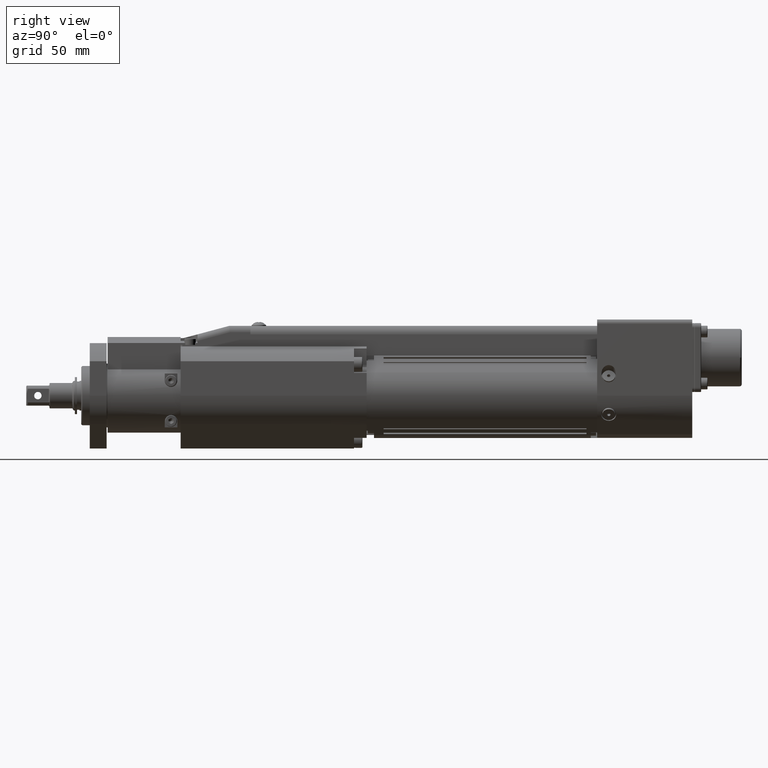
[diagram: clean part render]
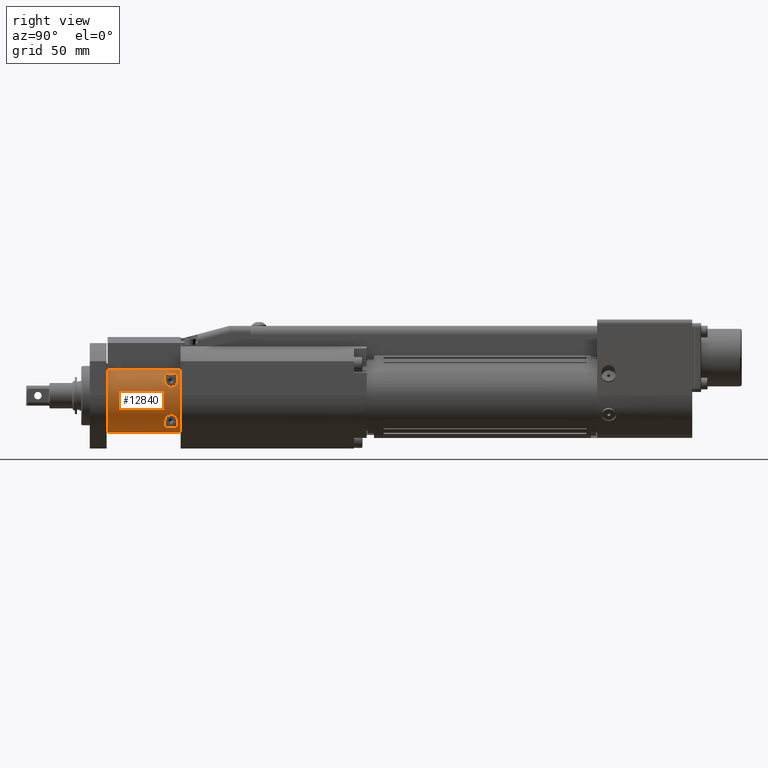
[diagram: same view with one face highlighted and labeled with its STEP entity id]
A machine part, right view. The second image highlights one B-rep face of the part: STEP entity #12840.
In plain terms, the highlighted cylindrical surface (partial cylindrical patch) has radius 17.5 mm, axis along (-0, 1, 0).
Its self-contained STEP definition (entity closure, byte-faithful):
#221=B_SPLINE_CURVE_WITH_KNOTS('',3,(#22420,#22421,#22422,#22423,#22424,
#22425,#22426,#22427,#22428,#22429,#22430,#22431,#22432,#22433,#22434,#22435,
#22436,#22437,#22438),.UNSPECIFIED.,.F.,.F.,(4,2,2,2,3,2,2,2,4),(-0.465745547031507,
-0.345290531737387,-0.224835516443268,-0.112417758221634,0.,0.113876091804133,
0.227752183608267,0.346748738347812,0.465745293087357),.UNSPECIFIED.);
#222=B_SPLINE_CURVE_WITH_KNOTS('',3,(#22439,#22440,#22441,#22442,#22443,
#22444,#22445,#22446,#22447,#22448,#22449,#22450,#22451,#22452,#22453,#22454,
#22455,#22456),.UNSPECIFIED.,.F.,.F.,(4,2,2,2,2,2,2,2,4),(0.593122453366662,
0.732736817292458,0.872351181218255,0.990238590093944,1.10812599896963,
1.21881461251213,1.32950322605462,1.47631867492946,1.6231341238043),
 .UNSPECIFIED.);
#443=CYLINDRICAL_SURFACE('',#14077,17.5);
#536=FACE_BOUND('',#2024,.T.);
#537=FACE_BOUND('',#2025,.T.);
#1234=FACE_OUTER_BOUND('',#2023,.T.);
#2023=EDGE_LOOP('',(#10978,#10979,#10980,#10981));
#2024=EDGE_LOOP('',(#10982,#10983,#10984,#10985));
#2025=EDGE_LOOP('',(#10986,#10987,#10988,#10989));
#2514=CIRCLE('',#13973,17.5);
#2515=CIRCLE('',#13975,17.5);
#2516=CIRCLE('',#13977,17.5);
#2517=CIRCLE('',#13979,17.5);
#2522=CIRCLE('',#13989,17.5);
#2541=CIRCLE('',#14064,17.5);
#3508=LINE('',#22014,#4564);
#3515=LINE('',#22031,#4571);
#3601=LINE('',#22417,#4657);
#3602=LINE('',#22457,#4658);
#4564=VECTOR('',#17278,10.);
#4571=VECTOR('',#17293,10.);
#4657=VECTOR('',#17561,10.);
#4658=VECTOR('',#17566,10.);
#5674=VERTEX_POINT('',#21985);
#5675=VERTEX_POINT('',#21987);
#5676=VERTEX_POINT('',#21991);
#5677=VERTEX_POINT('',#21992);
#5679=VERTEX_POINT('',#21998);
#5680=VERTEX_POINT('',#21999);
#5682=VERTEX_POINT('',#22005);
#5683=VERTEX_POINT('',#22006);
#5685=VERTEX_POINT('',#22012);
#5686=VERTEX_POINT('',#22013);
#5691=VERTEX_POINT('',#22028);
#5692=VERTEX_POINT('',#22030);
#7356=EDGE_CURVE('',#5675,#5674,#2514,.T.);
#7357=EDGE_CURVE('',#5676,#5677,#2515,.T.);
#7360=EDGE_CURVE('',#5679,#5680,#2516,.T.);
#7363=EDGE_CURVE('',#5682,#5683,#2517,.T.);
#7366=EDGE_CURVE('',#5685,#5686,#3508,.T.);
#7375=EDGE_CURVE('',#5692,#5691,#3515,.T.);
#7383=EDGE_CURVE('',#5692,#5685,#2522,.T.);
#7507=EDGE_CURVE('',#5686,#5691,#2541,.T.);
#7516=EDGE_CURVE('',#5680,#5676,#3601,.T.);
#7518=EDGE_CURVE('',#5677,#5679,#221,.T.);
#7519=EDGE_CURVE('',#5683,#5675,#222,.T.);
#7520=EDGE_CURVE('',#5674,#5682,#3602,.T.);
#10978=ORIENTED_EDGE('',*,*,#7366,.F.);
#10979=ORIENTED_EDGE('',*,*,#7383,.F.);
#10980=ORIENTED_EDGE('',*,*,#7375,.T.);
#10981=ORIENTED_EDGE('',*,*,#7507,.F.);
#10982=ORIENTED_EDGE('',*,*,#7516,.F.);
#10983=ORIENTED_EDGE('',*,*,#7360,.F.);
#10984=ORIENTED_EDGE('',*,*,#7518,.F.);
#10985=ORIENTED_EDGE('',*,*,#7357,.F.);
#10986=ORIENTED_EDGE('',*,*,#7519,.F.);
#10987=ORIENTED_EDGE('',*,*,#7363,.F.);
#10988=ORIENTED_EDGE('',*,*,#7520,.F.);
#10989=ORIENTED_EDGE('',*,*,#7356,.F.);
#12840=ADVANCED_FACE('',(#1234,#536,#537),#443,.T.);
#13973=AXIS2_PLACEMENT_3D('',#21989,#17256,#17257);
#13975=AXIS2_PLACEMENT_3D('',#21993,#17260,#17261);
#13977=AXIS2_PLACEMENT_3D('',#22000,#17266,#17267);
#13979=AXIS2_PLACEMENT_3D('',#22007,#17272,#17273);
#13989=AXIS2_PLACEMENT_3D('',#22046,#17307,#17308);
#14064=AXIS2_PLACEMENT_3D('',#22397,#17532,#17533);
#14077=AXIS2_PLACEMENT_3D('',#22419,#17564,#17565);
#17256=DIRECTION('center_axis',(-1.06451411820017E-15,1.,1.44402034189733E-15));
#17257=DIRECTION('ref_axis',(0.702857142857143,1.77537783132331E-15,-0.711331031752935));
#17260=DIRECTION('center_axis',(-1.06451411820017E-15,1.,1.22197573697229E-15));
#17261=DIRECTION('ref_axis',(0.702857142857143,1.77537783132331E-15,-0.711331031752935));
#17266=DIRECTION('center_axis',(1.06451411820017E-15,-1.,-1.11095343450978E-15));
#17267=DIRECTION('ref_axis',(0.702857142857143,1.77537783132331E-15,-0.711331031752935));
#17272=DIRECTION('center_axis',(1.06451411820017E-15,-1.,-8.88908829584747E-16));
#17273=DIRECTION('ref_axis',(0.702857142857143,1.77537783132331E-15,-0.711331031752935));
#17278=DIRECTION('',(-1.06451411820017E-15,1.,1.44402034189733E-15));
#17293=DIRECTION('',(-1.06451411820017E-15,1.,1.44402034189733E-15));
#17307=DIRECTION('center_axis',(1.06451411820017E-15,-1.,-1.44402034189733E-15));
#17308=DIRECTION('ref_axis',(0.702857142857143,1.77537783132331E-15,-0.711331031752935));
#17532=DIRECTION('center_axis',(7.21644966006352E-16,1.,-6.14759817044665E-16));
#17533=DIRECTION('ref_axis',(0.702857142857143,1.77537783132331E-15,-0.711331031752935));
#17561=DIRECTION('',(1.06451411820017E-15,-1.,-1.44402034189733E-15));
#17564=DIRECTION('center_axis',(-1.06451411820017E-15,1.,1.44402034189733E-15));
#17565=DIRECTION('ref_axis',(0.702857142857143,1.77537783132331E-15,-0.711331031752935));
#17566=DIRECTION('',(-1.06451411820017E-15,1.,1.44402034189733E-15));
#21985=CARTESIAN_POINT('',(8.99999999999993,-38.5,-15.0083310198036));
#21987=CARTESIAN_POINT('',(12.7377392028569,-38.5,-12.));
#21989=CARTESIAN_POINT('Origin',(-4.33447264986158E-14,-38.5,5.97712668833145E-14));
#21991=CARTESIAN_POINT('',(14.,-38.5,10.5));
#21992=CARTESIAN_POINT('',(16.0390149323454,-38.5,7.00000000000004));
#21993=CARTESIAN_POINT('Origin',(-4.33447264986158E-14,-38.5,5.97712668833145E-14));
#21998=CARTESIAN_POINT('',(16.0390149323454,-32.5,7.00000000000005));
#21999=CARTESIAN_POINT('',(14.,-32.5,10.5));
#22000=CARTESIAN_POINT('Origin',(-4.97318112078169E-14,-32.5,6.84353889346985E-14));
#22005=CARTESIAN_POINT('',(8.99999999999993,-32.5,-15.0083310198036));
#22006=CARTESIAN_POINT('',(12.7377392028569,-32.5,-11.9999999999999));
#22007=CARTESIAN_POINT('Origin',(-4.97318112078169E-14,-32.5,6.84353889346985E-14));
#22012=CARTESIAN_POINT('',(12.3,-65.5,12.4482930556763));
#22013=CARTESIAN_POINT('',(12.3,-31.,12.4482930556764));
#22014=CARTESIAN_POINT('',(12.3,-65.5,12.4482930556763));
#22028=CARTESIAN_POINT('',(0.299999999999925,-31.,-17.4974283824795));
#22030=CARTESIAN_POINT('',(0.299999999999962,-65.5,-17.4974283824795));
#22031=CARTESIAN_POINT('',(0.299999999999962,-65.5,-17.4974283824795));
#22046=CARTESIAN_POINT('Origin',(-1.46028453072112E-14,-65.5,2.07827176520867E-14));
#22397=CARTESIAN_POINT('Origin',(-5.13285823851172E-14,-31.,7.06014194475446E-14));
#22417=CARTESIAN_POINT('',(14.,-65.5,10.5));
#22419=CARTESIAN_POINT('Origin',(-1.46028453072112E-14,-65.5,2.07827176520867E-14));
#22420=CARTESIAN_POINT('Ctrl Pts',(16.0390149323454,-38.5,7.00000000000004));
#22421=CARTESIAN_POINT('Ctrl Pts',(16.1996216194042,-38.5,6.63200384971847));
#22422=CARTESIAN_POINT('Ctrl Pts',(16.3578915439738,-38.4279670032038,6.23115927700066));
#22423=CARTESIAN_POINT('Ctrl Pts',(16.6239123882701,-38.1191808556501,5.48210710667827));
#22424=CARTESIAN_POINT('Ctrl Pts',(16.7323406001072,-37.8820273246047,5.13430535749552));
#22425=CARTESIAN_POINT('Ctrl Pts',(16.8863366753857,-37.3389790734629,4.60144857914903));
#22426=CARTESIAN_POINT('Ctrl Pts',(16.9449126841093,-37.0059856374273,4.37537965135183));
#22427=CARTESIAN_POINT('Ctrl Pts',(17.019736441825,-36.2738327951843,4.07462684285702));
#22428=CARTESIAN_POINT('Ctrl Pts',(17.0367250374008,-35.8747258607388,4.00000000000005));
#22429=CARTESIAN_POINT('Ctrl Pts',(17.0367250374008,-35.5,4.00000000000005));
#22430=CARTESIAN_POINT('Ctrl Pts',(17.0367250374008,-35.1204130273196,4.00000000000005));
#22431=CARTESIAN_POINT('Ctrl Pts',(17.0193073335317,-34.7164846586206,4.07656104509621));
#22432=CARTESIAN_POINT('Ctrl Pts',(16.9425982693486,-33.9770523543404,4.38446535960489));
#22433=CARTESIAN_POINT('Ctrl Pts',(16.8825288175431,-33.6416062197252,4.61575309315552));
#22434=CARTESIAN_POINT('Ctrl Pts',(16.7264467290663,-33.1039305437449,5.15342876913585));
#22435=CARTESIAN_POINT('Ctrl Pts',(16.61837894628,-32.8720624862528,5.49858595656046));
#22436=CARTESIAN_POINT('Ctrl Pts',(16.3543159235649,-32.5702983064014,6.24029784983707));
#22437=CARTESIAN_POINT('Ctrl Pts',(16.1976770053315,-32.5,6.63645952031144));
#22438=CARTESIAN_POINT('Ctrl Pts',(16.0390149323454,-32.5,7.00000000000005));
#22439=CARTESIAN_POINT('Ctrl Pts',(12.7377392028569,-32.5,-11.9999999999999));
#22440=CARTESIAN_POINT('Ctrl Pts',(13.056857748973,-32.5,-11.6612625987315));
#22441=CARTESIAN_POINT('Ctrl Pts',(13.3883751439569,-32.5605734805869,-11.2795137070452));
#22442=CARTESIAN_POINT('Ctrl Pts',(13.9810249050006,-32.8512291528572,-10.5359840172818));
#22443=CARTESIAN_POINT('Ctrl Pts',(14.2425258971572,-33.0824259239927,-10.174933388888));
#22444=CARTESIAN_POINT('Ctrl Pts',(14.616198705487,-33.6288300271183,-9.62852928576234));
#22445=CARTESIAN_POINT('Ctrl Pts',(14.7642572732063,-33.9556624825731,-9.3968614441542));
#22446=CARTESIAN_POINT('Ctrl Pts',(14.959812695928,-34.6947804614797,-9.08230694812041));
#22447=CARTESIAN_POINT('Ctrl Pts',(15.0083310198036,-35.1070419704144,-8.99999999999995));
#22448=CARTESIAN_POINT('Ctrl Pts',(15.0083310198036,-35.8689620451416,-8.99999999999996));
#22449=CARTESIAN_POINT('Ctrl Pts',(14.9654351358067,-36.2583433386103,-9.07266026756476));
#22450=CARTESIAN_POINT('Ctrl Pts',(14.7910941088553,-36.9642788518224,-9.35419424728926));
#22451=CARTESIAN_POINT('Ctrl Pts',(14.6588832619237,-37.2808557444833,-9.56253617057013));
#22452=CARTESIAN_POINT('Ctrl Pts',(14.3025904342902,-37.8562604607546,-10.0904795300501));
#22453=CARTESIAN_POINT('Ctrl Pts',(14.0349130200958,-38.1116278286476,-10.4650151520045));
#22454=CARTESIAN_POINT('Ctrl Pts',(13.4205339618167,-38.4329763056192,-11.2420903902687));
#22455=CARTESIAN_POINT('Ctrl Pts',(13.0733173717137,-38.5,-11.6437910669108));
#22456=CARTESIAN_POINT('Ctrl Pts',(12.7377392028569,-38.5,-12.));
#22457=CARTESIAN_POINT('',(8.99999999999996,-65.5,-15.0083310198036));